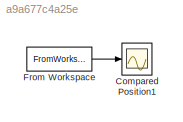
MODEL slx_a9a677c4a25e
KIND model
CONFIG AbsTol = auto
CONFIG EnableMultiTasking = off
CONFIG FixedStep = auto
CONFIG MaxStep = auto
CONFIG MinStep = auto
CONFIG RelTol = 1e-3
CONFIG SampleTimeConstraint = Unconstrained
CONFIG Solver = VariableStepAuto
CONFIG SolverName = VariableStepAuto
CONFIG StartTime = 0.0
CONFIG StopTime = 10.0
WORKSPACE source: MATLAB code (in-file)
WORKSPACE t = 0.2 * [0:49]'
WORKSPACE x = sin(t)
WORKSPACE y = 10*sin(t)
WORKSPACE code: wave.time = [];
WORKSPACE code: wave.signals.values = [x,y];
WORKSPACE code: wave.signals.dimensions =2;
BLOCK [Scope] Compared Position1
  Floating = off
  NumInputPorts = 1
  Ports = [1]
  ScopeSpecificationString = Simulink.scopes.TimeScopeBlockCfg('CurrentConfiguration', extmgr.ConfigurationSet(extmgr.Configuration('Core','General UI',true),extmgr.Configuration('Core','Source UI',true),extmgr.Configuration('Sources','WiredSimulink',true,'DataLoggingVariableName','ScopeData1'),extmgr.Configuration('Visuals','Time Domain',true,'SerializedDisplays',{struct('MinYLimReal','-29.98179','MaxYLimReal','69.9574','YLa...<+1443ch>
BLOCK [FromWorkspace] From Workspace
  Interpolate = off
  OutputAfterFinalValue = Setting to zero
  SampleTime = 0.01
  VariableName = path1
  ZeroCross = on
LINE From Workspace:1 -> Compared Position1:1
